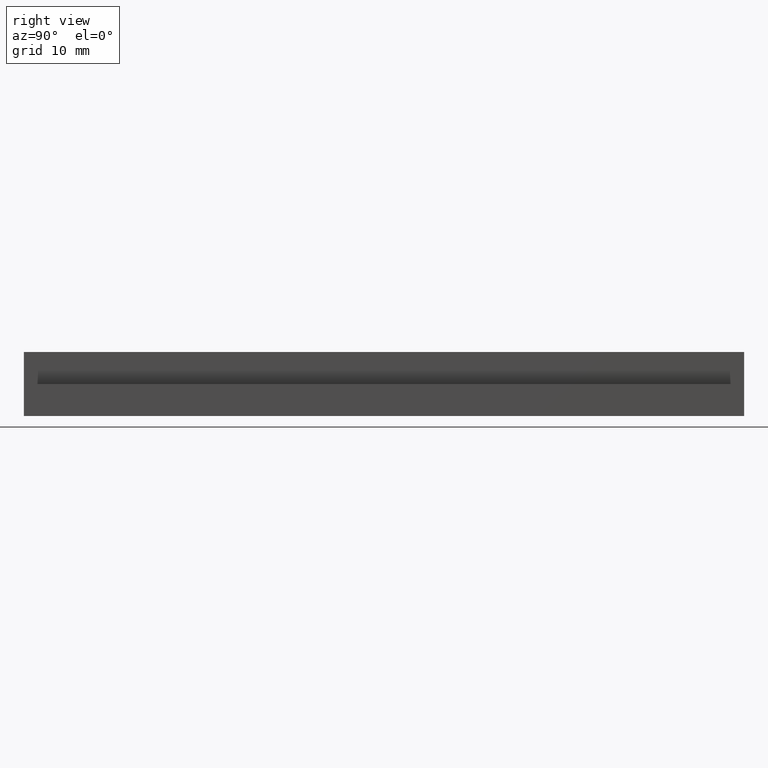
[diagram: clean part render]
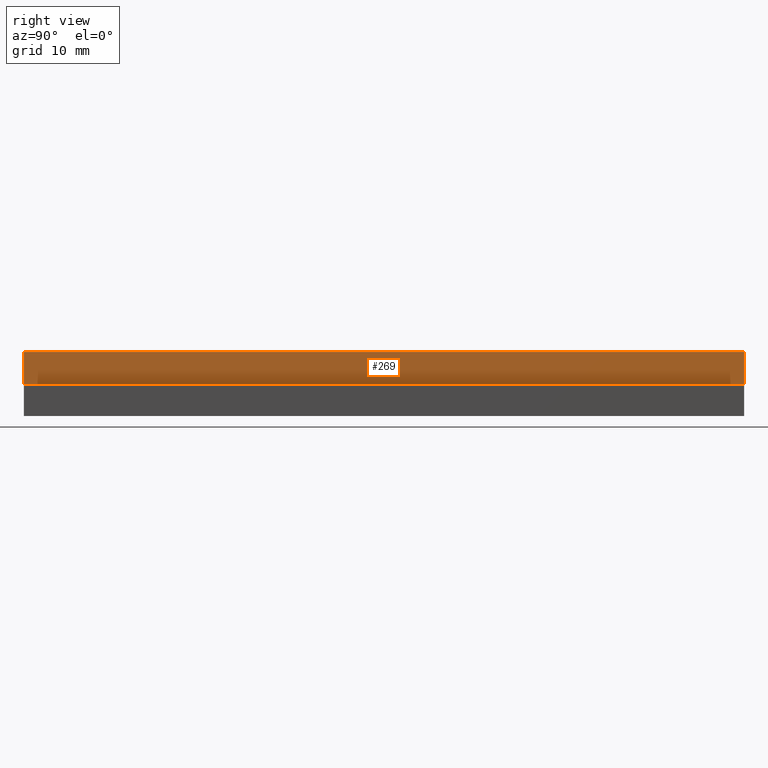
[diagram: same view with one face highlighted and labeled with its STEP entity id]
A machine part, right view. The second image highlights one B-rep face of the part: STEP entity #269.
In plain terms, the highlighted planar face has unit normal (1, 0, 0).
Its self-contained STEP definition (entity closure, byte-faithful):
#213=CARTESIAN_POINT('',(4.149999999999999,0.0,4.0));
#214=VERTEX_POINT('',#213);
#222=CARTESIAN_POINT('',(4.149999999999999,90.0,3.999999999999995));
#223=VERTEX_POINT('',#222);
#230=CARTESIAN_POINT('',(4.149999999999999,90.0,3.999999999999995));
#231=DIRECTION('',(0.0,-1.0,0.0));
#232=VECTOR('',#231,90.0);
#233=LINE('',#230,#232);
#234=EDGE_CURVE('',#223,#214,#233,.T.);
#239=CARTESIAN_POINT('',(4.149999999999999,-4.499999999999999,3.800000000000001));
#240=DIRECTION('',(1.0,0.0,0.0));
#241=DIRECTION('',(0.0,1.0,0.0));
#242=AXIS2_PLACEMENT_3D('',#239,#240,#241);
#243=PLANE('',#242);
#244=CARTESIAN_POINT('',(4.149999999999999,1.776357E-015,8.0));
#245=VERTEX_POINT('',#244);
#246=CARTESIAN_POINT('',(4.149999999999999,0.0,4.0));
#247=DIRECTION('',(0.0,0.0,1.0));
#248=VECTOR('',#247,4.0);
#249=LINE('',#246,#248);
#250=EDGE_CURVE('',#214,#245,#249,.T.);
#251=ORIENTED_EDGE('',*,*,#250,.F.);
#252=ORIENTED_EDGE('',*,*,#234,.F.);
#253=CARTESIAN_POINT('',(4.149999999999999,90.0,7.999999999999993));
#254=VERTEX_POINT('',#253);
#255=CARTESIAN_POINT('',(4.149999999999999,90.0,3.999999999999995));
#256=DIRECTION('',(0.0,0.0,1.0));
#257=VECTOR('',#256,4.0);
#258=LINE('',#255,#257);
#259=EDGE_CURVE('',#223,#254,#258,.T.);
#260=ORIENTED_EDGE('',*,*,#259,.T.);
#261=CARTESIAN_POINT('',(4.149999999999999,90.0,7.999999999999993));
#262=DIRECTION('',(0.0,-1.0,0.0));
#263=VECTOR('',#262,90.0);
#264=LINE('',#261,#263);
#265=EDGE_CURVE('',#254,#245,#264,.T.);
#266=ORIENTED_EDGE('',*,*,#265,.T.);
#267=EDGE_LOOP('',(#251,#252,#260,#266));
#268=FACE_OUTER_BOUND('',#267,.T.);
#269=ADVANCED_FACE('',(#268),#243,.T.);